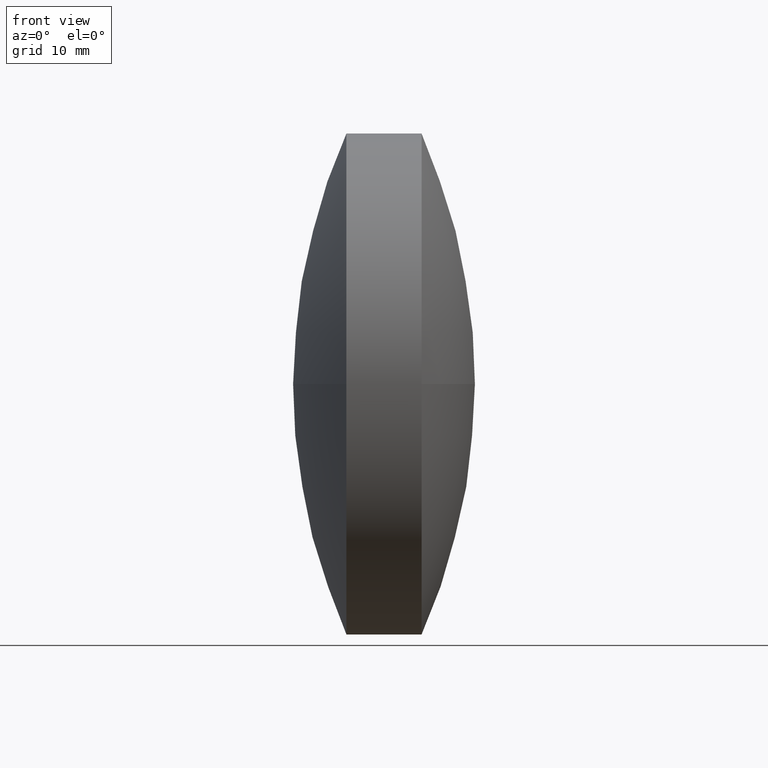
[diagram: clean part render]
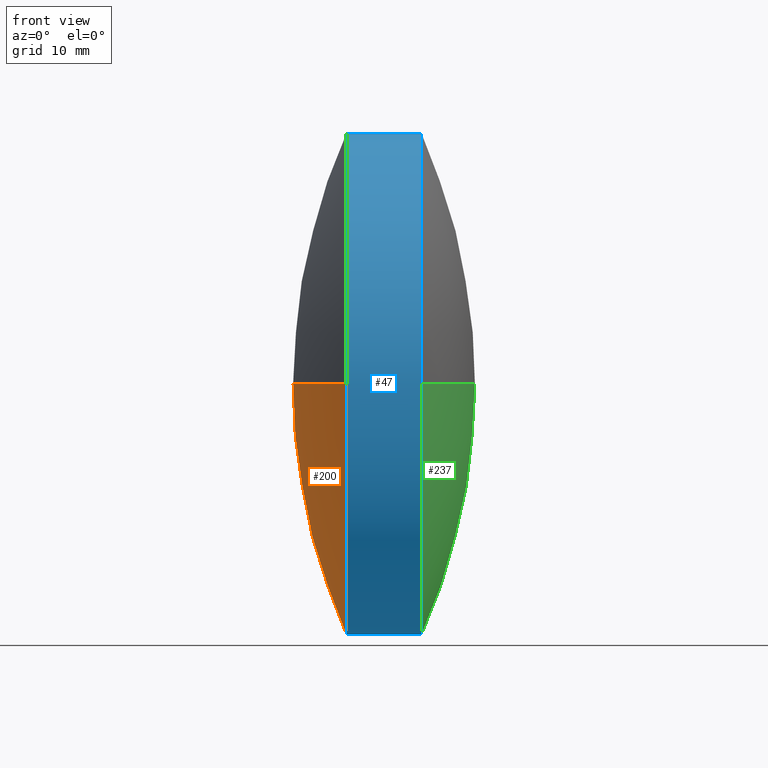
[diagram: same view with three faces highlighted in distinct colors, each labeled with its STEP entity id]
A machine part, front view with three faces highlighted in distinct colors.
Their STEP definitions:

[orange] entity #200 — the highlighted spherical surface has radius 85.9273 mm.
#2 = DIRECTION ( 'NONE',  ( 0.0000000000000000000, 0.0000000000000000000, 1.000000000000000000 ) ) ;
#5 = VERTEX_POINT ( 'NONE', #218 ) ;
#10 = CARTESIAN_POINT ( 'NONE',  ( 233.0206127648180000, 133.9814138434226200, 0.0000000000000000000 ) ) ;
#15 = SPHERICAL_SURFACE ( 'NONE', #102, 85.92725649641434400 ) ;
#16 = VERTEX_POINT ( 'NONE', #143 ) ;
#27 = EDGE_CURVE ( 'NONE', #16, #85, #194, .T. ) ;
#29 = CIRCLE ( 'NONE', #244, 35.00000000000000000 ) ;
#36 = ORIENTED_EDGE ( 'NONE', *, *, #27, .F. ) ;
#42 = DIRECTION ( 'NONE',  ( 0.0000000000000000000, 1.000000000000000000, 1.224646799147353000E-016 ) ) ;
#53 = EDGE_LOOP ( 'NONE', ( #317, #88, #166, #36 ) ) ;
#59 = EDGE_CURVE ( 'NONE', #94, #5, #29, .T. ) ;
#85 = VERTEX_POINT ( 'NONE', #322 ) ;
#88 = ORIENTED_EDGE ( 'NONE', *, *, #59, .T. ) ;
#89 = DIRECTION ( 'NONE',  ( 0.0000000000000000000, 0.0000000000000000000, 1.000000000000000000 ) ) ;
#90 = DIRECTION ( 'NONE',  ( 0.0000000000000000000, 1.224646799147353200E-016, -1.000000000000000000 ) ) ;
#94 = VERTEX_POINT ( 'NONE', #248 ) ;
#102 = AXIS2_PLACEMENT_3D ( 'NONE', #305, #153, #277 ) ;
#118 = CIRCLE ( 'NONE', #342, 35.00000000000000000 ) ;
#124 = CARTESIAN_POINT ( 'NONE',  ( 233.0206127648180000, 133.9814138434226200, 0.0000000000000000000 ) ) ;
#127 = AXIS2_PLACEMENT_3D ( 'NONE', #251, #90, #42 ) ;
#143 = CARTESIAN_POINT ( 'NONE',  ( 233.0206127648180000, 168.9814138434226200, 0.0000000000000000000 ) ) ;
#144 = DIRECTION ( 'NONE',  ( -0.0000000000000000000, 0.0000000000000000000, 1.000000000000000000 ) ) ;
#153 = DIRECTION ( 'NONE',  ( -0.0000000000000000000, 0.0000000000000000000, -1.000000000000000000 ) ) ;
#166 = ORIENTED_EDGE ( 'NONE', *, *, #292, .T. ) ;
#194 = CIRCLE ( 'NONE', #224, 85.92725649641435800 ) ;
#195 = DIRECTION ( 'NONE',  ( -1.000000000000000000, -0.0000000000000000000, -0.0000000000000000000 ) ) ;
#200 = ADVANCED_FACE ( 'NONE', ( #226 ), #15, .T. ) ;
#218 = CARTESIAN_POINT ( 'NONE',  ( 233.0206127648180000, 98.98141384342260100, -4.286263797015736500E-015 ) ) ;
#224 = AXIS2_PLACEMENT_3D ( 'NONE', #246, #144, #270 ) ;
#226 = FACE_OUTER_BOUND ( 'NONE', #53, .T. ) ;
#232 = EDGE_CURVE ( 'NONE', #16, #94, #118, .T. ) ;
#244 = AXIS2_PLACEMENT_3D ( 'NONE', #10, #195, #2 ) ;
#246 = CARTESIAN_POINT ( 'NONE',  ( 311.4966817858933700, 133.9814138434226200, 0.0000000000000000000 ) ) ;
#248 = CARTESIAN_POINT ( 'NONE',  ( 233.0206127648180000, 133.9814138434226200, -35.00000000000000000 ) ) ;
#251 = CARTESIAN_POINT ( 'NONE',  ( 311.4966817858933700, 133.9814138434226200, 0.0000000000000000000 ) ) ;
#270 = DIRECTION ( 'NONE',  ( 1.000000000000000000, 0.0000000000000000000, 0.0000000000000000000 ) ) ;
#277 = DIRECTION ( 'NONE',  ( 0.0000000000000000000, 1.000000000000000000, 0.0000000000000000000 ) ) ;
#281 = CIRCLE ( 'NONE', #127, 85.92725649641435800 ) ;
#292 = EDGE_CURVE ( 'NONE', #5, #85, #281, .T. ) ;
#305 = CARTESIAN_POINT ( 'NONE',  ( 311.4966817858933700, 133.9814138434226200, 0.0000000000000000000 ) ) ;
#317 = ORIENTED_EDGE ( 'NONE', *, *, #232, .T. ) ;
#322 = CARTESIAN_POINT ( 'NONE',  ( 225.5694252894790000, 133.9814138434226200, 0.0000000000000000000 ) ) ;
#329 = DIRECTION ( 'NONE',  ( -1.000000000000000000, -0.0000000000000000000, -0.0000000000000000000 ) ) ;
#342 = AXIS2_PLACEMENT_3D ( 'NONE', #124, #329, #89 ) ;

[blue] entity #47 — the highlighted cylindrical surface (partial cylindrical patch) has radius 35 mm, axis along (-1, -0, -0).
#2 = DIRECTION ( 'NONE',  ( 0.0000000000000000000, 0.0000000000000000000, 1.000000000000000000 ) ) ;
#5 = VERTEX_POINT ( 'NONE', #218 ) ;
#6 = DIRECTION ( 'NONE',  ( -1.000000000000000000, -0.0000000000000000000, -0.0000000000000000000 ) ) ;
#10 = CARTESIAN_POINT ( 'NONE',  ( 233.0206127648180000, 133.9814138434226200, 0.0000000000000000000 ) ) ;
#13 = DIRECTION ( 'NONE',  ( 0.0000000000000000000, 0.0000000000000000000, 1.000000000000000000 ) ) ;
#19 = AXIS2_PLACEMENT_3D ( 'NONE', #68, #199, #13 ) ;
#23 = ORIENTED_EDGE ( 'NONE', *, *, #59, .F. ) ;
#26 = CIRCLE ( 'NONE', #265, 35.00000000000000000 ) ;
#29 = CIRCLE ( 'NONE', #244, 35.00000000000000000 ) ;
#35 = CARTESIAN_POINT ( 'NONE',  ( 222.8966066484798600, 133.9814138434226200, -35.00000000000000000 ) ) ;
#39 = DIRECTION ( 'NONE',  ( -1.000000000000000000, -0.0000000000000000000, -0.0000000000000000000 ) ) ;
#40 = VERTEX_POINT ( 'NONE', #137 ) ;
#44 = LINE ( 'NONE', #95, #295 ) ;
#45 = CYLINDRICAL_SURFACE ( 'NONE', #217, 35.00000000000000000 ) ;
#47 = ADVANCED_FACE ( 'NONE', ( #334 ), #45, .T. ) ;
#54 = EDGE_CURVE ( 'NONE', #233, #94, #260, .T. ) ;
#59 = EDGE_CURVE ( 'NONE', #94, #5, #29, .T. ) ;
#60 = DIRECTION ( 'NONE',  ( 0.0000000000000000000, 0.0000000000000000000, 1.000000000000000000 ) ) ;
#63 = CARTESIAN_POINT ( 'NONE',  ( 233.0206127648180000, 133.9814138434226200, 0.0000000000000000000 ) ) ;
#68 = CARTESIAN_POINT ( 'NONE',  ( 243.5206127648180300, 133.9814138434226200, 0.0000000000000000000 ) ) ;
#80 = EDGE_LOOP ( 'NONE', ( #211, #227, #154, #309, #282, #23 ) ) ;
#81 = EDGE_CURVE ( 'NONE', #40, #267, #338, .T. ) ;
#94 = VERTEX_POINT ( 'NONE', #248 ) ;
#95 = CARTESIAN_POINT ( 'NONE',  ( 222.8966066484798600, 133.9814138434226200, 35.00000000000000000 ) ) ;
#104 = CIRCLE ( 'NONE', #19, 35.00000000000000000 ) ;
#137 = CARTESIAN_POINT ( 'NONE',  ( 243.5206127648180300, 98.98141384342261500, 0.0000000000000000000 ) ) ;
#145 = DIRECTION ( 'NONE',  ( -1.000000000000000000, -0.0000000000000000000, -0.0000000000000000000 ) ) ;
#149 = CARTESIAN_POINT ( 'NONE',  ( 243.5206127648180300, 133.9814138434226200, 35.00000000000000000 ) ) ;
#154 = ORIENTED_EDGE ( 'NONE', *, *, #81, .T. ) ;
#188 = EDGE_CURVE ( 'NONE', #5, #236, #26, .T. ) ;
#190 = VECTOR ( 'NONE', #273, 1000.000000000000000 ) ;
#195 = DIRECTION ( 'NONE',  ( -1.000000000000000000, -0.0000000000000000000, -0.0000000000000000000 ) ) ;
#199 = DIRECTION ( 'NONE',  ( -1.000000000000000000, -0.0000000000000000000, -0.0000000000000000000 ) ) ;
#210 = EDGE_CURVE ( 'NONE', #267, #236, #44, .T. ) ;
#211 = ORIENTED_EDGE ( 'NONE', *, *, #54, .F. ) ;
#213 = CARTESIAN_POINT ( 'NONE',  ( 222.8966066484798600, 133.9814138434226200, 0.0000000000000000000 ) ) ;
#217 = AXIS2_PLACEMENT_3D ( 'NONE', #213, #6, #323 ) ;
#218 = CARTESIAN_POINT ( 'NONE',  ( 233.0206127648180000, 98.98141384342260100, -4.286263797015736500E-015 ) ) ;
#227 = ORIENTED_EDGE ( 'NONE', *, *, #249, .T. ) ;
#233 = VERTEX_POINT ( 'NONE', #256 ) ;
#236 = VERTEX_POINT ( 'NONE', #330 ) ;
#244 = AXIS2_PLACEMENT_3D ( 'NONE', #10, #195, #2 ) ;
#248 = CARTESIAN_POINT ( 'NONE',  ( 233.0206127648180000, 133.9814138434226200, -35.00000000000000000 ) ) ;
#249 = EDGE_CURVE ( 'NONE', #233, #40, #104, .T. ) ;
#250 = DIRECTION ( 'NONE',  ( 0.0000000000000000000, 0.0000000000000000000, 1.000000000000000000 ) ) ;
#256 = CARTESIAN_POINT ( 'NONE',  ( 243.5206127648180300, 133.9814138434226200, -35.00000000000000000 ) ) ;
#260 = LINE ( 'NONE', #35, #190 ) ;
#265 = AXIS2_PLACEMENT_3D ( 'NONE', #63, #145, #250 ) ;
#267 = VERTEX_POINT ( 'NONE', #149 ) ;
#273 = DIRECTION ( 'NONE',  ( -1.000000000000000000, -0.0000000000000000000, -0.0000000000000000000 ) ) ;
#282 = ORIENTED_EDGE ( 'NONE', *, *, #188, .F. ) ;
#295 = VECTOR ( 'NONE', #39, 1000.000000000000000 ) ;
#296 = AXIS2_PLACEMENT_3D ( 'NONE', #297, #325, #60 ) ;
#297 = CARTESIAN_POINT ( 'NONE',  ( 243.5206127648180300, 133.9814138434226200, 0.0000000000000000000 ) ) ;
#309 = ORIENTED_EDGE ( 'NONE', *, *, #210, .T. ) ;
#323 = DIRECTION ( 'NONE',  ( 0.0000000000000000000, 0.0000000000000000000, 1.000000000000000000 ) ) ;
#325 = DIRECTION ( 'NONE',  ( -1.000000000000000000, -0.0000000000000000000, -0.0000000000000000000 ) ) ;
#330 = CARTESIAN_POINT ( 'NONE',  ( 233.0206127648180000, 133.9814138434226200, 35.00000000000000000 ) ) ;
#334 = FACE_OUTER_BOUND ( 'NONE', #80, .T. ) ;
#338 = CIRCLE ( 'NONE', #296, 35.00000000000000000 ) ;

[green] entity #237 — the highlighted spherical surface has radius 85.9273 mm.
#12 = ORIENTED_EDGE ( 'NONE', *, *, #314, .T. ) ;
#13 = DIRECTION ( 'NONE',  ( 0.0000000000000000000, 0.0000000000000000000, 1.000000000000000000 ) ) ;
#18 = CARTESIAN_POINT ( 'NONE',  ( 165.0445437437425100, 133.9814138434226400, 0.0000000000000000000 ) ) ;
#19 = AXIS2_PLACEMENT_3D ( 'NONE', #68, #199, #13 ) ;
#30 = EDGE_LOOP ( 'NONE', ( #110, #12, #140, #119 ) ) ;
#32 = DIRECTION ( 'NONE',  ( -1.000000000000000000, -0.0000000000000000000, -0.0000000000000000000 ) ) ;
#34 = AXIS2_PLACEMENT_3D ( 'NONE', #18, #125, #222 ) ;
#40 = VERTEX_POINT ( 'NONE', #137 ) ;
#41 = DIRECTION ( 'NONE',  ( -1.000000000000000000, 0.0000000000000000000, 0.0000000000000000000 ) ) ;
#67 = CARTESIAN_POINT ( 'NONE',  ( 243.5206127648180300, 168.9814138434226400, 4.286263797015734100E-015 ) ) ;
#68 = CARTESIAN_POINT ( 'NONE',  ( 243.5206127648180300, 133.9814138434226200, 0.0000000000000000000 ) ) ;
#96 = CARTESIAN_POINT ( 'NONE',  ( 250.9718002401569700, 133.9814138434226400, 0.0000000000000000000 ) ) ;
#104 = CIRCLE ( 'NONE', #19, 35.00000000000000000 ) ;
#109 = AXIS2_PLACEMENT_3D ( 'NONE', #300, #148, #223 ) ;
#110 = ORIENTED_EDGE ( 'NONE', *, *, #268, .F. ) ;
#115 = CARTESIAN_POINT ( 'NONE',  ( 243.5206127648180300, 133.9814138434226200, 0.0000000000000000000 ) ) ;
#116 = EDGE_CURVE ( 'NONE', #221, #233, #187, .T. ) ;
#119 = ORIENTED_EDGE ( 'NONE', *, *, #116, .F. ) ;
#125 = DIRECTION ( 'NONE',  ( 0.0000000000000000000, 0.0000000000000000000, 1.000000000000000000 ) ) ;
#137 = CARTESIAN_POINT ( 'NONE',  ( 243.5206127648180300, 98.98141384342261500, 0.0000000000000000000 ) ) ;
#140 = ORIENTED_EDGE ( 'NONE', *, *, #249, .F. ) ;
#148 = DIRECTION ( 'NONE',  ( 0.0000000000000000000, -1.224646799147353200E-016, 1.000000000000000000 ) ) ;
#151 = CARTESIAN_POINT ( 'NONE',  ( 165.0445437437425100, 133.9814138434226400, 0.0000000000000000000 ) ) ;
#165 = FACE_OUTER_BOUND ( 'NONE', #30, .T. ) ;
#187 = CIRCLE ( 'NONE', #238, 35.00000000000000000 ) ;
#189 = CIRCLE ( 'NONE', #109, 85.92725649641450000 ) ;
#198 = DIRECTION ( 'NONE',  ( 0.0000000000000000000, 0.0000000000000000000, -1.000000000000000000 ) ) ;
#199 = DIRECTION ( 'NONE',  ( -1.000000000000000000, -0.0000000000000000000, -0.0000000000000000000 ) ) ;
#208 = SPHERICAL_SURFACE ( 'NONE', #34, 85.92725649641450000 ) ;
#221 = VERTEX_POINT ( 'NONE', #67 ) ;
#222 = DIRECTION ( 'NONE',  ( 0.0000000000000000000, -1.000000000000000000, 0.0000000000000000000 ) ) ;
#223 = DIRECTION ( 'NONE',  ( 0.0000000000000000000, -1.000000000000000000, -1.224646799147353200E-016 ) ) ;
#233 = VERTEX_POINT ( 'NONE', #256 ) ;
#237 = ADVANCED_FACE ( 'NONE', ( #165 ), #208, .T. ) ;
#238 = AXIS2_PLACEMENT_3D ( 'NONE', #115, #32, #245 ) ;
#242 = CIRCLE ( 'NONE', #255, 85.92725649641450000 ) ;
#245 = DIRECTION ( 'NONE',  ( 0.0000000000000000000, 0.0000000000000000000, 1.000000000000000000 ) ) ;
#249 = EDGE_CURVE ( 'NONE', #233, #40, #104, .T. ) ;
#255 = AXIS2_PLACEMENT_3D ( 'NONE', #151, #198, #41 ) ;
#256 = CARTESIAN_POINT ( 'NONE',  ( 243.5206127648180300, 133.9814138434226200, -35.00000000000000000 ) ) ;
#268 = EDGE_CURVE ( 'NONE', #272, #221, #189, .T. ) ;
#272 = VERTEX_POINT ( 'NONE', #96 ) ;
#300 = CARTESIAN_POINT ( 'NONE',  ( 165.0445437437425100, 133.9814138434226400, 0.0000000000000000000 ) ) ;
#314 = EDGE_CURVE ( 'NONE', #272, #40, #242, .T. ) ;